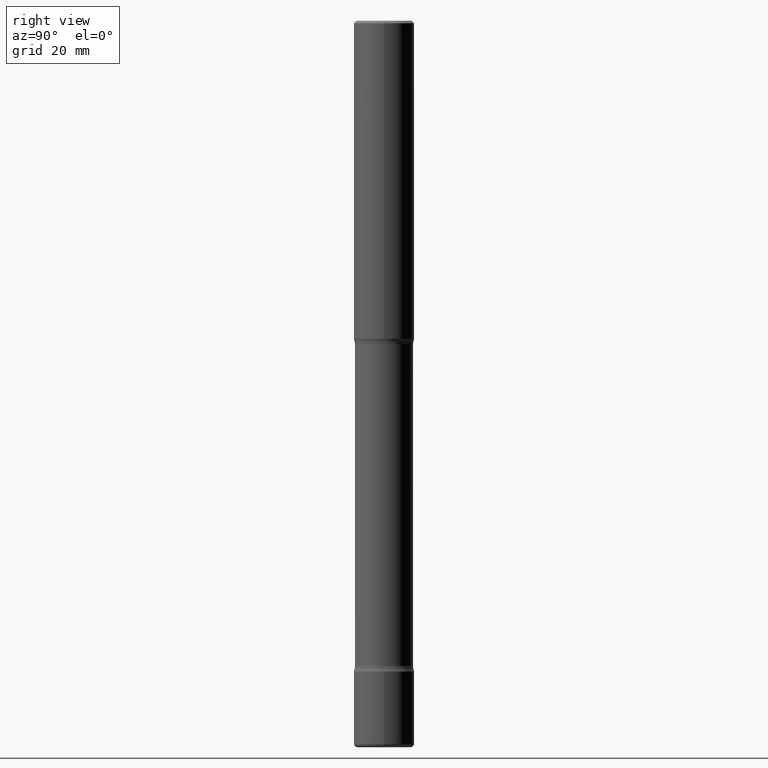
[diagram: clean part render]
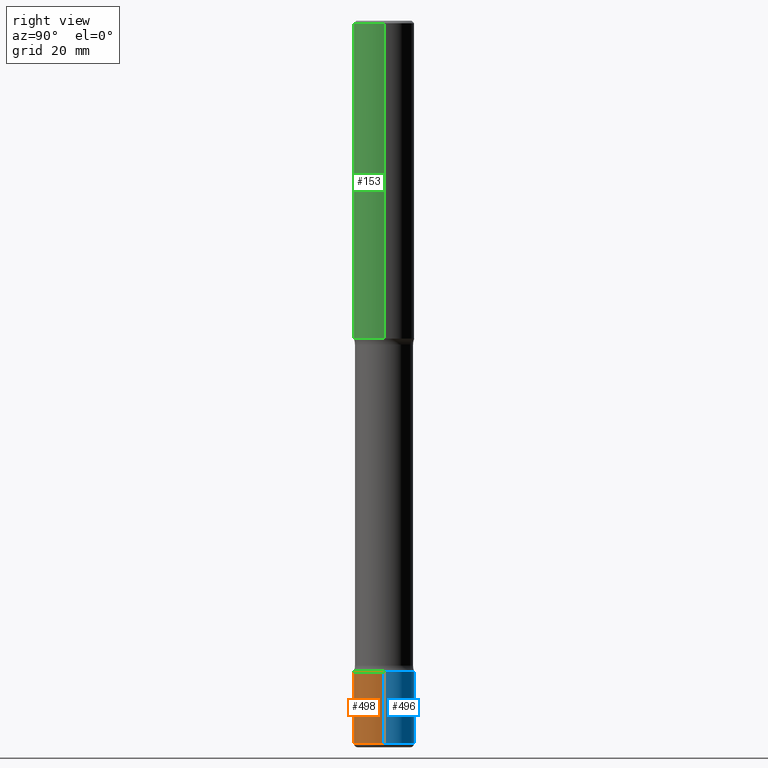
[diagram: same view with three faces highlighted in distinct colors, each labeled with its STEP entity id]
A machine part, right view with three faces highlighted in distinct colors.
Their STEP definitions:

[orange] entity #498 — the highlighted cylindrical surface (edge-blend (fillet) strip) has radius 6.35 mm, axis along (-0, 0, 1).
#15 = EDGE_CURVE ( 'NONE', #108, #546, #316, .T. ) ;
#35 = DIRECTION ( 'NONE',  ( -2.445468806185136597E-29, 3.491481338843145583E-15, 1.000000000000000000 ) ) ;
#65 = CYLINDRICAL_SURFACE ( 'NONE', #254, 0.2500000000000002220 ) ;
#81 = AXIS2_PLACEMENT_3D ( 'NONE', #323, #287, #160 ) ;
#108 = VERTEX_POINT ( 'NONE', #375 ) ;
#115 = EDGE_CURVE ( 'NONE', #143, #108, #506, .T. ) ;
#126 = CARTESIAN_POINT ( 'NONE',  ( -0.2500000000000002220, 1.776356839400252042E-15, -1.229733772563727566E-29 ) ) ;
#143 = VERTEX_POINT ( 'NONE', #514 ) ;
#154 = ORIENTED_EDGE ( 'NONE', *, *, #15, .F. ) ;
#160 = DIRECTION ( 'NONE',  ( 1.000000000000000000, -6.982962677686273810E-15, 0.000000000000000000 ) ) ;
#178 = CARTESIAN_POINT ( 'NONE',  ( 1.314439483324511145E-28, -1.876671219628190963E-14, -5.375000000000000888 ) ) ;
#179 = CARTESIAN_POINT ( 'NONE',  ( 0.2500000000000000555, -2.258988426231514917E-14, -5.970000000000000639 ) ) ;
#215 = AXIS2_PLACEMENT_3D ( 'NONE', #178, #308, #435 ) ;
#233 = ORIENTED_EDGE ( 'NONE', *, *, #115, .F. ) ;
#243 = ORIENTED_EDGE ( 'NONE', *, *, #263, .T. ) ;
#254 = AXIS2_PLACEMENT_3D ( 'NONE', #265, #35, #470 ) ;
#261 = VECTOR ( 'NONE', #469, 39.37007874015748143 ) ;
#263 = EDGE_CURVE ( 'NONE', #341, #546, #380, .T. ) ;
#265 = CARTESIAN_POINT ( 'NONE',  ( 0.000000000000000000, 0.000000000000000000, 0.000000000000000000 ) ) ;
#287 = DIRECTION ( 'NONE',  ( -2.445468806185136597E-29, 3.491481338843145583E-15, 1.000000000000000000 ) ) ;
#308 = DIRECTION ( 'NONE',  ( -2.445468806185136597E-29, 3.491481338843145583E-15, 1.000000000000000000 ) ) ;
#316 = CIRCLE ( 'NONE', #215, 0.2500000000000002220 ) ;
#323 = CARTESIAN_POINT ( 'NONE',  ( 1.459944877292526719E-28, -2.084414359289358249E-14, -5.970000000000000639 ) ) ;
#341 = VERTEX_POINT ( 'NONE', #179 ) ;
#351 = CIRCLE ( 'NONE', #81, 0.2500000000000001665 ) ;
#373 = CARTESIAN_POINT ( 'NONE',  ( 0.2500000000000002220, -1.745740669421568255E-15, 1.219044193948984929E-29 ) ) ;
#375 = CARTESIAN_POINT ( 'NONE',  ( -0.2500000000000002220, -1.802907105518749402E-14, -5.375000000000000888 ) ) ;
#380 = LINE ( 'NONE', #373, #464 ) ;
#384 = CARTESIAN_POINT ( 'NONE',  ( 0.2500000000000002220, -2.051245286570347946E-14, -5.375000000000000888 ) ) ;
#390 = EDGE_LOOP ( 'NONE', ( #233, #530, #243, #154 ) ) ;
#435 = DIRECTION ( 'NONE',  ( 1.000000000000000000, -6.982962677686272233E-15, 0.000000000000000000 ) ) ;
#450 = FACE_OUTER_BOUND ( 'NONE', #390, .T. ) ;
#454 = EDGE_CURVE ( 'NONE', #143, #341, #351, .T. ) ;
#464 = VECTOR ( 'NONE', #477, 39.37007874015748143 ) ;
#469 = DIRECTION ( 'NONE',  ( -2.445468806185136877E-29, 3.491481338843145188E-15, 1.000000000000000000 ) ) ;
#470 = DIRECTION ( 'NONE',  ( 1.000000000000000000, -6.982962677686266711E-15, 4.876176775795935232E-29 ) ) ;
#477 = DIRECTION ( 'NONE',  ( -2.445468806185136877E-29, 3.491481338843145188E-15, 1.000000000000000000 ) ) ;
#498 = ADVANCED_FACE ( 'NONE', ( #450 ), #65, .T. ) ;
#506 = LINE ( 'NONE', #126, #261 ) ;
#514 = CARTESIAN_POINT ( 'NONE',  ( -0.2500000000000000555, -1.906778675349333203E-14, -5.970000000000000639 ) ) ;
#530 = ORIENTED_EDGE ( 'NONE', *, *, #454, .T. ) ;
#546 = VERTEX_POINT ( 'NONE', #384 ) ;

[blue] entity #496 — the highlighted cylindrical surface (edge-blend (fillet) strip) has radius 6.35 mm, axis along (-0, 0, 1).
#17 = ORIENTED_EDGE ( 'NONE', *, *, #213, .F. ) ;
#30 = CYLINDRICAL_SURFACE ( 'NONE', #492, 0.2500000000000002220 ) ;
#39 = CARTESIAN_POINT ( 'NONE',  ( 1.459944877292526719E-28, -2.084414359289358249E-14, -5.970000000000000639 ) ) ;
#60 = ORIENTED_EDGE ( 'NONE', *, *, #115, .T. ) ;
#67 = CIRCLE ( 'NONE', #386, 0.2500000000000002220 ) ;
#108 = VERTEX_POINT ( 'NONE', #375 ) ;
#112 = CARTESIAN_POINT ( 'NONE',  ( 1.314439483324511145E-28, -1.876671219628190963E-14, -5.375000000000000888 ) ) ;
#113 = DIRECTION ( 'NONE',  ( 1.000000000000000000, -6.982962677686266711E-15, 4.876176775795935232E-29 ) ) ;
#115 = EDGE_CURVE ( 'NONE', #143, #108, #506, .T. ) ;
#126 = CARTESIAN_POINT ( 'NONE',  ( -0.2500000000000002220, 1.776356839400252042E-15, -1.229733772563727566E-29 ) ) ;
#127 = DIRECTION ( 'NONE',  ( 1.000000000000000000, -6.982962677686273810E-15, 0.000000000000000000 ) ) ;
#143 = VERTEX_POINT ( 'NONE', #514 ) ;
#179 = CARTESIAN_POINT ( 'NONE',  ( 0.2500000000000000555, -2.258988426231514917E-14, -5.970000000000000639 ) ) ;
#184 = EDGE_LOOP ( 'NONE', ( #493, #60, #17, #291 ) ) ;
#203 = FACE_OUTER_BOUND ( 'NONE', #184, .T. ) ;
#209 = DIRECTION ( 'NONE',  ( -2.445468806185136597E-29, 3.491481338843145583E-15, 1.000000000000000000 ) ) ;
#213 = EDGE_CURVE ( 'NONE', #546, #108, #67, .T. ) ;
#261 = VECTOR ( 'NONE', #469, 39.37007874015748143 ) ;
#263 = EDGE_CURVE ( 'NONE', #341, #546, #380, .T. ) ;
#286 = DIRECTION ( 'NONE',  ( 1.000000000000000000, -6.982962677686272233E-15, 0.000000000000000000 ) ) ;
#291 = ORIENTED_EDGE ( 'NONE', *, *, #263, .F. ) ;
#293 = AXIS2_PLACEMENT_3D ( 'NONE', #39, #559, #127 ) ;
#341 = VERTEX_POINT ( 'NONE', #179 ) ;
#373 = CARTESIAN_POINT ( 'NONE',  ( 0.2500000000000002220, -1.745740669421568255E-15, 1.219044193948984929E-29 ) ) ;
#375 = CARTESIAN_POINT ( 'NONE',  ( -0.2500000000000002220, -1.802907105518749402E-14, -5.375000000000000888 ) ) ;
#380 = LINE ( 'NONE', #373, #464 ) ;
#384 = CARTESIAN_POINT ( 'NONE',  ( 0.2500000000000002220, -2.051245286570347946E-14, -5.375000000000000888 ) ) ;
#386 = AXIS2_PLACEMENT_3D ( 'NONE', #112, #528, #286 ) ;
#464 = VECTOR ( 'NONE', #477, 39.37007874015748143 ) ;
#466 = CIRCLE ( 'NONE', #293, 0.2500000000000001665 ) ;
#469 = DIRECTION ( 'NONE',  ( -2.445468806185136877E-29, 3.491481338843145188E-15, 1.000000000000000000 ) ) ;
#477 = DIRECTION ( 'NONE',  ( -2.445468806185136877E-29, 3.491481338843145188E-15, 1.000000000000000000 ) ) ;
#492 = AXIS2_PLACEMENT_3D ( 'NONE', #497, #209, #113 ) ;
#493 = ORIENTED_EDGE ( 'NONE', *, *, #522, .T. ) ;
#496 = ADVANCED_FACE ( 'NONE', ( #203 ), #30, .T. ) ;
#497 = CARTESIAN_POINT ( 'NONE',  ( 0.000000000000000000, 0.000000000000000000, 0.000000000000000000 ) ) ;
#506 = LINE ( 'NONE', #126, #261 ) ;
#514 = CARTESIAN_POINT ( 'NONE',  ( -0.2500000000000000555, -1.906778675349333203E-14, -5.970000000000000639 ) ) ;
#522 = EDGE_CURVE ( 'NONE', #341, #143, #466, .T. ) ;
#528 = DIRECTION ( 'NONE',  ( -2.445468806185136597E-29, 3.491481338843145583E-15, 1.000000000000000000 ) ) ;
#546 = VERTEX_POINT ( 'NONE', #384 ) ;
#559 = DIRECTION ( 'NONE',  ( -2.445468806185136597E-29, 3.491481338843145583E-15, 1.000000000000000000 ) ) ;

[green] entity #153 — the highlighted cylindrical surface (edge-blend (fillet) strip) has radius 6.35 mm, axis along (-0, 0, 1).
#4 = CARTESIAN_POINT ( 'NONE',  ( -0.2500000000000001110, 1.675911042644704760E-15, -0.02000000000000000042 ) ) ;
#13 = VERTEX_POINT ( 'NONE', #4 ) ;
#25 = EDGE_LOOP ( 'NONE', ( #445, #485, #103, #476 ) ) ;
#47 = VERTEX_POINT ( 'NONE', #191 ) ;
#73 = DIRECTION ( 'NONE',  ( -2.445468806185136877E-29, 3.491481338843145188E-15, 1.000000000000000000 ) ) ;
#87 = CARTESIAN_POINT ( 'NONE',  ( -0.2500000000000002220, 1.776356839400252042E-15, -1.229733772563727566E-29 ) ) ;
#90 = DIRECTION ( 'NONE',  ( -2.445468806185136597E-29, 3.491481338843145583E-15, 1.000000000000000000 ) ) ;
#103 = ORIENTED_EDGE ( 'NONE', *, *, #346, .T. ) ;
#109 = AXIS2_PLACEMENT_3D ( 'NONE', #333, #428, #495 ) ;
#121 = LINE ( 'NONE', #87, #167 ) ;
#139 = VERTEX_POINT ( 'NONE', #467 ) ;
#153 = ADVANCED_FACE ( 'NONE', ( #256 ), #410, .T. ) ;
#167 = VECTOR ( 'NONE', #258, 39.37007874015748143 ) ;
#168 = CARTESIAN_POINT ( 'NONE',  ( 0.000000000000000000, 0.000000000000000000, 0.000000000000000000 ) ) ;
#177 = EDGE_CURVE ( 'NONE', #139, #13, #121, .T. ) ;
#191 = CARTESIAN_POINT ( 'NONE',  ( 0.2500000000000003331, -1.091087918388482802E-14, -2.625000000000000444 ) ) ;
#195 = VECTOR ( 'NONE', #73, 39.37007874015748143 ) ;
#202 = EDGE_CURVE ( 'NONE', #13, #229, #510, .T. ) ;
#205 = DIRECTION ( 'NONE',  ( 1.000000000000000000, -6.982962677686267499E-15, 4.876176775795936353E-29 ) ) ;
#229 = VERTEX_POINT ( 'NONE', #274 ) ;
#242 = AXIS2_PLACEMENT_3D ( 'NONE', #168, #421, #205 ) ;
#244 = CIRCLE ( 'NONE', #512, 0.2500000000000003331 ) ;
#256 = FACE_OUTER_BOUND ( 'NONE', #25, .T. ) ;
#258 = DIRECTION ( 'NONE',  ( -2.445468806185136877E-29, 3.491481338843145188E-15, 1.000000000000000000 ) ) ;
#274 = CARTESIAN_POINT ( 'NONE',  ( 0.2500000000000001110, -1.784954126219746583E-15, -0.02000000000000000042 ) ) ;
#333 = CARTESIAN_POINT ( 'NONE',  ( 4.890937612370273159E-31, -6.982962677686291609E-17, -0.02000000000000000042 ) ) ;
#345 = LINE ( 'NONE', #502, #195 ) ;
#346 = EDGE_CURVE ( 'NONE', #47, #229, #345, .T. ) ;
#378 = CARTESIAN_POINT ( 'NONE',  ( 6.419355616235984688E-29, -9.165138514463258190E-15, -2.625000000000000444 ) ) ;
#385 = DIRECTION ( 'NONE',  ( 1.000000000000000000, -6.982962677686269077E-15, 0.000000000000000000 ) ) ;
#410 = CYLINDRICAL_SURFACE ( 'NONE', #242, 0.2500000000000002220 ) ;
#421 = DIRECTION ( 'NONE',  ( -2.445468806185136597E-29, 3.491481338843145583E-15, 1.000000000000000000 ) ) ;
#428 = DIRECTION ( 'NONE',  ( -2.445468806185136597E-29, 3.491481338843145583E-15, 1.000000000000000000 ) ) ;
#445 = ORIENTED_EDGE ( 'NONE', *, *, #177, .F. ) ;
#467 = CARTESIAN_POINT ( 'NONE',  ( -0.2500000000000003331, -2.841127231219806335E-15, -2.625000000000000444 ) ) ;
#476 = ORIENTED_EDGE ( 'NONE', *, *, #202, .F. ) ;
#485 = ORIENTED_EDGE ( 'NONE', *, *, #515, .T. ) ;
#495 = DIRECTION ( 'NONE',  ( 1.000000000000000000, -6.982962677686267499E-15, 0.000000000000000000 ) ) ;
#502 = CARTESIAN_POINT ( 'NONE',  ( 0.2500000000000002220, -1.745740669421568453E-15, 1.219044193948985209E-29 ) ) ;
#510 = CIRCLE ( 'NONE', #109, 0.2500000000000001110 ) ;
#512 = AXIS2_PLACEMENT_3D ( 'NONE', #378, #90, #385 ) ;
#515 = EDGE_CURVE ( 'NONE', #139, #47, #244, .T. ) ;